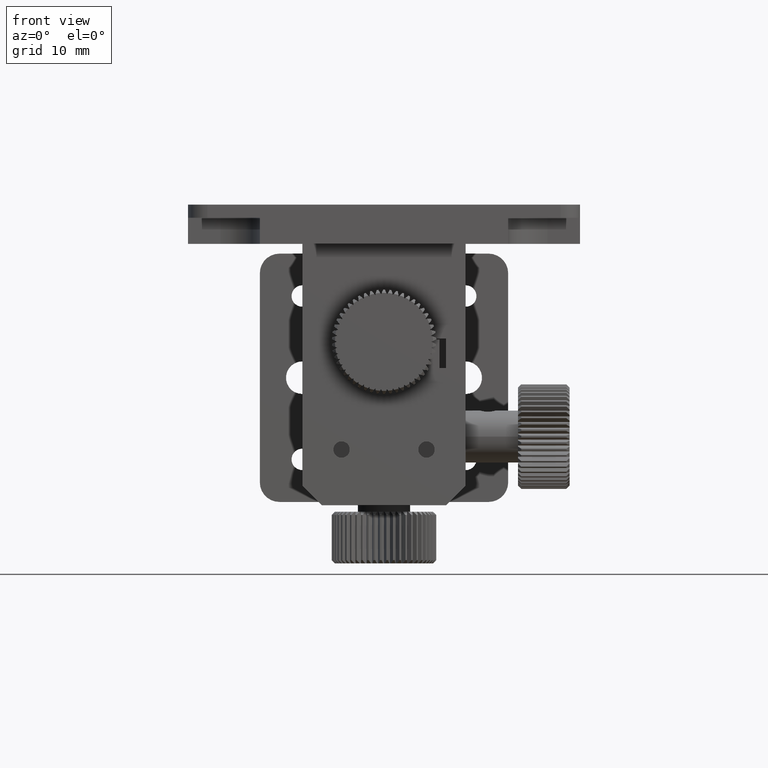
[diagram: clean part render]
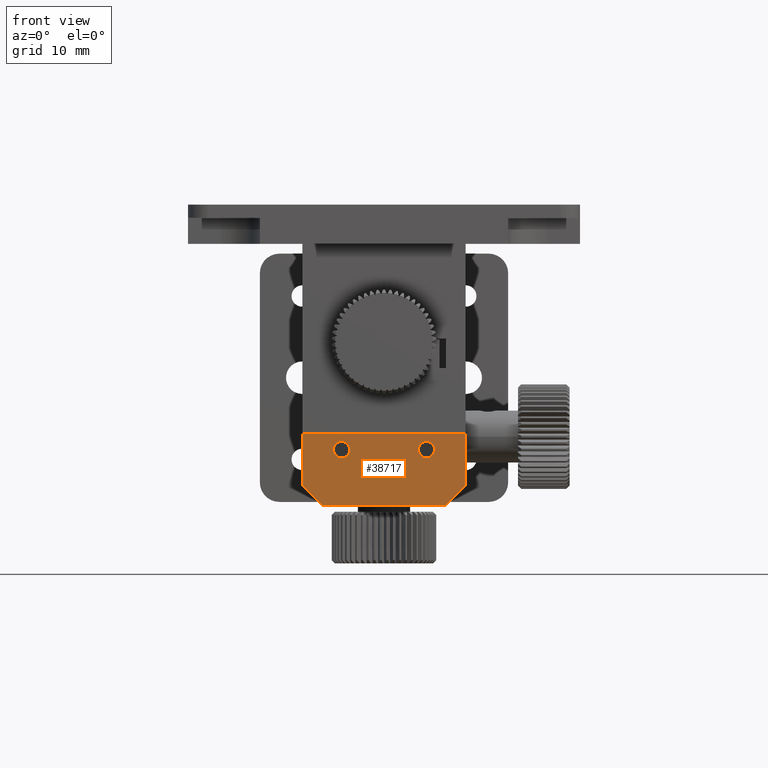
[diagram: same view with one face highlighted and labeled with its STEP entity id]
A machine part, front view. The second image highlights one B-rep face of the part: STEP entity #38717.
In plain terms, the highlighted planar face has unit normal (-0, 1, -0).
Its self-contained STEP definition (entity closure, byte-faithful):
#948 = DIRECTION ( 'NONE',  ( 0.7071067811865479100, 3.991472485953879400E-016, -0.7071067811865472400 ) ) ;
#1233 = CARTESIAN_POINT ( 'NONE',  ( -12.49999999999999300, -17.00000000000000700, -37.00000000000000700 ) ) ;
#1517 = ORIENTED_EDGE ( 'NONE', *, *, #8230, .F. ) ;
#2890 = ORIENTED_EDGE ( 'NONE', *, *, #35709, .T. ) ;
#3347 = VERTEX_POINT ( 'NONE', #28440 ) ;
#3610 = LINE ( 'NONE', #33526, #35902 ) ;
#3778 = DIRECTION ( 'NONE',  ( -2.369221262660865200E-016, 2.914335439641033000E-016, -1.000000000000000000 ) ) ;
#3917 = DIRECTION ( 'NONE',  ( 1.000000000000000000, 0.0000000000000000000, 0.0000000000000000000 ) ) ;
#4149 = ORIENTED_EDGE ( 'NONE', *, *, #14010, .F. ) ;
#4401 = DIRECTION ( 'NONE',  ( 1.000000000000000000, 0.0000000000000000000, 0.0000000000000000000 ) ) ;
#4558 = DIRECTION ( 'NONE',  ( -2.730459083833986000E-016, 1.000000000000000000, -2.914335439641048200E-016 ) ) ;
#4670 = ORIENTED_EDGE ( 'NONE', *, *, #28626, .F. ) ;
#4717 = CARTESIAN_POINT ( 'NONE',  ( -9.499999999999984000, -17.00000000000000700, -39.99999999999999300 ) ) ;
#6456 = EDGE_LOOP ( 'NONE', ( #35768, #4670 ) ) ;
#7025 = DIRECTION ( 'NONE',  ( 5.156634238777516400E-016, -1.000000000000000000, 2.914335439641048200E-016 ) ) ;
#7924 = AXIS2_PLACEMENT_3D ( 'NONE', #16153, #28117, #4401 ) ;
#8230 = EDGE_CURVE ( 'NONE', #35178, #14540, #10943, .T. ) ;
#8424 = CARTESIAN_POINT ( 'NONE',  ( 12.50000000000000900, -17.00000000000000000, -37.00000000000000700 ) ) ;
#9242 = CARTESIAN_POINT ( 'NONE',  ( 5.250000000000020400, -17.00000000000000000, -31.49999999999999300 ) ) ;
#10609 = CARTESIAN_POINT ( 'NONE',  ( -7.749999999999986700, -17.00000000000000700, -31.49999999999999300 ) ) ;
#10739 = CARTESIAN_POINT ( 'NONE',  ( 12.50000000000000900, -17.00000000000000000, -40.00000000000000700 ) ) ;
#10943 = CIRCLE ( 'NONE', #34272, 1.249999999999987100 ) ;
#10997 = DIRECTION ( 'NONE',  ( -1.000000000000000000, -2.730459083833986000E-016, 2.306187572873299700E-017 ) ) ;
#11675 = CARTESIAN_POINT ( 'NONE',  ( 9.500000000000000000, -17.00000000000000000, -40.00000000000000700 ) ) ;
#11990 = ORIENTED_EDGE ( 'NONE', *, *, #31779, .T. ) ;
#12057 = EDGE_LOOP ( 'NONE', ( #1517, #23937 ) ) ;
#12453 = VERTEX_POINT ( 'NONE', #4717 ) ;
#12852 = CARTESIAN_POINT ( 'NONE',  ( -6.500000000000000000, -17.00000000000000700, -31.49999999999999300 ) ) ;
#12951 = CARTESIAN_POINT ( 'NONE',  ( 12.50000000000000900, -17.00000000000000000, -40.00000000000000700 ) ) ;
#13532 = DIRECTION ( 'NONE',  ( 1.000000000000000000, 0.0000000000000000000, 0.0000000000000000000 ) ) ;
#13750 = DIRECTION ( 'NONE',  ( 5.156634238777516400E-016, -1.000000000000000000, 2.914335439641048200E-016 ) ) ;
#13921 = PLANE ( 'NONE',  #19852 ) ;
#14002 = EDGE_CURVE ( 'NONE', #27928, #27249, #25200, .T. ) ;
#14010 = EDGE_CURVE ( 'NONE', #29792, #36672, #3610, .T. ) ;
#14057 = DIRECTION ( 'NONE',  ( -1.000000000000000000, -2.730459083833986000E-016, 2.306187572873299700E-017 ) ) ;
#14540 = VERTEX_POINT ( 'NONE', #9242 ) ;
#15740 = VECTOR ( 'NONE', #15900, 1000.000000000000000 ) ;
#15900 = DIRECTION ( 'NONE',  ( -1.000000000000000000, -2.730459083833986000E-016, 2.306187572873299700E-017 ) ) ;
#16042 = CARTESIAN_POINT ( 'NONE',  ( -12.50000000000001100, -17.00000000000000700, -39.99999999999999300 ) ) ;
#16153 = CARTESIAN_POINT ( 'NONE',  ( -6.500000000000000000, -17.00000000000000700, -31.49999999999999300 ) ) ;
#16650 = LINE ( 'NONE', #34823, #30163 ) ;
#16674 = LINE ( 'NONE', #16042, #30648 ) ;
#18058 = AXIS2_PLACEMENT_3D ( 'NONE', #22208, #22341, #13532 ) ;
#19852 = AXIS2_PLACEMENT_3D ( 'NONE', #10739, #4558, #10997 ) ;
#20692 = EDGE_CURVE ( 'NONE', #36351, #12453, #34809, .T. ) ;
#20802 = CARTESIAN_POINT ( 'NONE',  ( -5.250000000000012400, -17.00000000000000700, -31.49999999999999300 ) ) ;
#21369 = EDGE_LOOP ( 'NONE', ( #27149, #27982, #36956, #2890, #4149, #11990 ) ) ;
#22208 = CARTESIAN_POINT ( 'NONE',  ( 6.500000000000007100, -17.00000000000000000, -31.49999999999999300 ) ) ;
#22341 = DIRECTION ( 'NONE',  ( 5.156634238777516400E-016, -1.000000000000000000, 2.914335439641048200E-016 ) ) ;
#22497 = CARTESIAN_POINT ( 'NONE',  ( 7.749999999999994700, -17.00000000000000000, -31.49999999999999300 ) ) ;
#22676 = CARTESIAN_POINT ( 'NONE',  ( 6.500000000000007100, -17.00000000000000000, -31.49999999999999300 ) ) ;
#23937 = ORIENTED_EDGE ( 'NONE', *, *, #28120, .F. ) ;
#25200 = CIRCLE ( 'NONE', #33717, 1.249999999999987100 ) ;
#27149 = ORIENTED_EDGE ( 'NONE', *, *, #30366, .T. ) ;
#27249 = VERTEX_POINT ( 'NONE', #10609 ) ;
#27911 = VECTOR ( 'NONE', #948, 1000.000000000000000 ) ;
#27928 = VERTEX_POINT ( 'NONE', #20802 ) ;
#27982 = ORIENTED_EDGE ( 'NONE', *, *, #29785, .T. ) ;
#28117 = DIRECTION ( 'NONE',  ( 5.156634238777516400E-016, -1.000000000000000000, 2.914335439641048200E-016 ) ) ;
#28120 = EDGE_CURVE ( 'NONE', #14540, #35178, #36882, .T. ) ;
#28212 = LINE ( 'NONE', #28803, #36578 ) ;
#28440 = CARTESIAN_POINT ( 'NONE',  ( -12.50000000000000900, -17.00000000000000700, -28.99999999999996100 ) ) ;
#28626 = EDGE_CURVE ( 'NONE', #27249, #27928, #34548, .T. ) ;
#28803 = CARTESIAN_POINT ( 'NONE',  ( 12.50000000000001200, -17.00000000000000000, -37.00000000000000700 ) ) ;
#29785 = EDGE_CURVE ( 'NONE', #37075, #12453, #34919, .T. ) ;
#29792 = VERTEX_POINT ( 'NONE', #33957 ) ;
#30163 = VECTOR ( 'NONE', #14057, 1000.000000000000000 ) ;
#30366 = EDGE_CURVE ( 'NONE', #3347, #37075, #16674, .T. ) ;
#30648 = VECTOR ( 'NONE', #33654, 1000.000000000000000 ) ;
#31779 = EDGE_CURVE ( 'NONE', #29792, #3347, #16650, .T. ) ;
#33526 = CARTESIAN_POINT ( 'NONE',  ( 12.50000000000000900, -17.00000000000000000, -40.00000000000000700 ) ) ;
#33654 = DIRECTION ( 'NONE',  ( -2.369221262660865200E-016, 2.914335439641033000E-016, -1.000000000000000000 ) ) ;
#33717 = AXIS2_PLACEMENT_3D ( 'NONE', #12852, #7025, #3917 ) ;
#33957 = CARTESIAN_POINT ( 'NONE',  ( 12.50000000000000900, -17.00000000000000000, -28.99999999999996400 ) ) ;
#34272 = AXIS2_PLACEMENT_3D ( 'NONE', #22676, #13750, #34520 ) ;
#34520 = DIRECTION ( 'NONE',  ( 1.000000000000000000, 0.0000000000000000000, 0.0000000000000000000 ) ) ;
#34548 = CIRCLE ( 'NONE', #7924, 1.249999999999987100 ) ;
#34809 = LINE ( 'NONE', #12951, #15740 ) ;
#34823 = CARTESIAN_POINT ( 'NONE',  ( 12.50000000000000900, -17.00000000000000000, -28.99999999999996400 ) ) ;
#34919 = LINE ( 'NONE', #36657, #27911 ) ;
#35178 = VERTEX_POINT ( 'NONE', #22497 ) ;
#35709 = EDGE_CURVE ( 'NONE', #36351, #36672, #28212, .T. ) ;
#35768 = ORIENTED_EDGE ( 'NONE', *, *, #14002, .F. ) ;
#35902 = VECTOR ( 'NONE', #3778, 1000.000000000000000 ) ;
#35912 = FACE_BOUND ( 'NONE', #12057, .T. ) ;
#36351 = VERTEX_POINT ( 'NONE', #11675 ) ;
#36578 = VECTOR ( 'NONE', #37531, 1000.000000000000000 ) ;
#36657 = CARTESIAN_POINT ( 'NONE',  ( -9.499999999999984000, -17.00000000000000700, -39.99999999999999300 ) ) ;
#36672 = VERTEX_POINT ( 'NONE', #8424 ) ;
#36882 = CIRCLE ( 'NONE', #18058, 1.249999999999987100 ) ;
#36956 = ORIENTED_EDGE ( 'NONE', *, *, #20692, .F. ) ;
#37075 = VERTEX_POINT ( 'NONE', #1233 ) ;
#37299 = FACE_BOUND ( 'NONE', #6456, .T. ) ;
#37531 = DIRECTION ( 'NONE',  ( 0.7071067811865481300, -1.300202180910307100E-017, 0.7071067811865470200 ) ) ;
#38232 = FACE_OUTER_BOUND ( 'NONE', #21369, .T. ) ;
#38717 = ADVANCED_FACE ( 'NONE', ( #37299, #35912, #38232 ), #13921, .F. ) ;